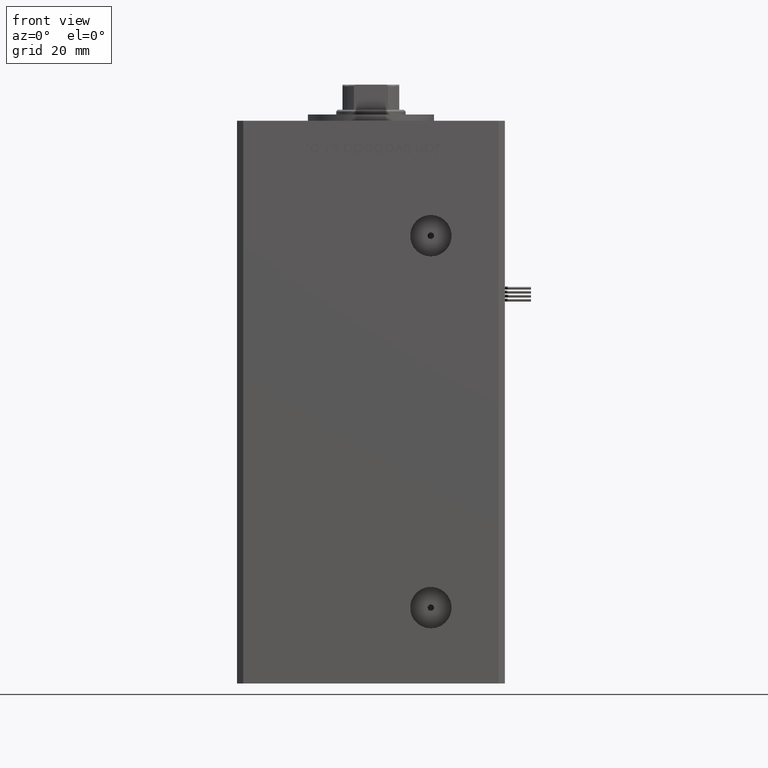
[diagram: clean part render]
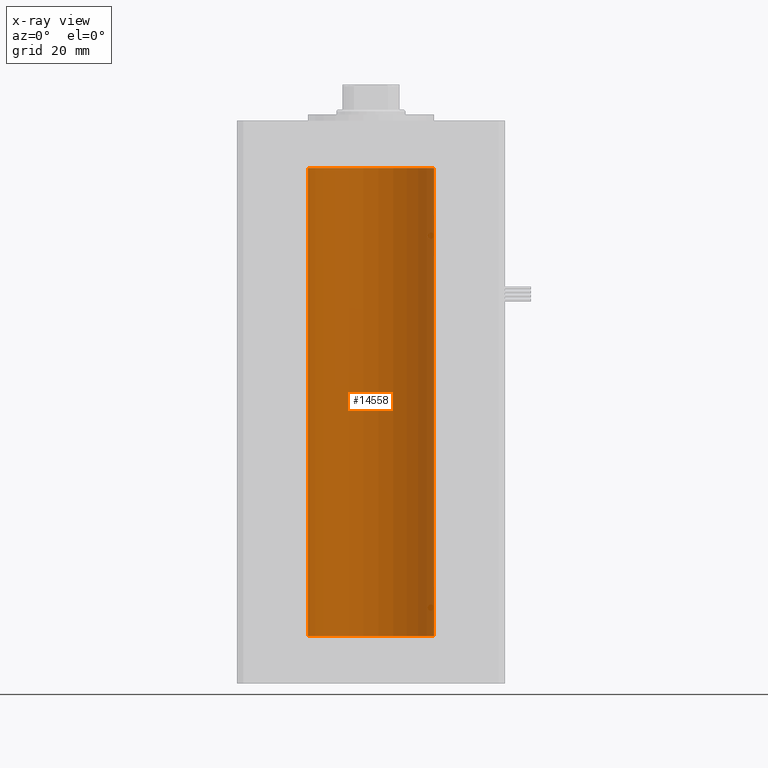
[diagram: x-ray — body ghosted, one internal face saturated and labeled with its STEP entity id]
A machine part, front view, then the same camera in x-ray: the body is ghosted and one INTERNAL B-rep face — a face not visible from any outside direction — is saturated and labeled: STEP entity #14558.
In plain terms, the highlighted cylindrical surface (partial cylindrical patch) has radius 20 mm, axis along (-0, -0, -1).
Its self-contained STEP definition (entity closure, byte-faithful):
#66 = DIRECTION ( 'NONE',  ( -0.000000000000000000, -0.000000000000000000, -1.000000000000000000 ) ) ;
#2416 = CARTESIAN_POINT ( 'NONE',  ( 0.000000000000000000, 0.000000000000000000, 148.5000000000000000 ) ) ;
#2616 = EDGE_CURVE ( 'NONE', #5485, #48357, #25473, .T. ) ;
#5485 = VERTEX_POINT ( 'NONE', #27902 ) ;
#6746 = VERTEX_POINT ( 'NONE', #25646 ) ;
#6875 = CYLINDRICAL_SURFACE ( 'NONE', #9455, 20.00000000000000000 ) ;
#8182 = CARTESIAN_POINT ( 'NONE',  ( -20.00000000000000000, 0.000000000000000000, 148.5000000000000000 ) ) ;
#8729 = AXIS2_PLACEMENT_3D ( 'NONE', #2416, #37036, #27540 ) ;
#9455 = AXIS2_PLACEMENT_3D ( 'NONE', #23895, #14714, #27805 ) ;
#10801 = FACE_OUTER_BOUND ( 'NONE', #40722, .T. ) ;
#13743 = DIRECTION ( 'NONE',  ( 1.000000000000000000, 0.000000000000000000, 0.000000000000000000 ) ) ;
#14066 = CIRCLE ( 'NONE', #8729, 20.00000000000000000 ) ;
#14558 = ADVANCED_FACE ( 'NONE', ( #10801 ), #6875, .F. ) ;
#14714 = DIRECTION ( 'NONE',  ( -0.000000000000000000, -0.000000000000000000, -1.000000000000000000 ) ) ;
#17154 = VECTOR ( 'NONE', #41071, 1000.000000000000000 ) ;
#18593 = VERTEX_POINT ( 'NONE', #49458 ) ;
#19474 = EDGE_CURVE ( 'NONE', #18593, #5485, #14066, .T. ) ;
#20233 = ORIENTED_EDGE ( 'NONE', *, *, #35294, .F. ) ;
#23895 = CARTESIAN_POINT ( 'NONE',  ( 0.000000000000000000, 0.000000000000000000, 148.5000000000000000 ) ) ;
#25473 = LINE ( 'NONE', #8182, #37768 ) ;
#25646 = CARTESIAN_POINT ( 'NONE',  ( 20.00000000000000000, 2.449293598294706513E-15, 0.000000000000000000 ) ) ;
#25731 = CIRCLE ( 'NONE', #43536, 20.00000000000000000 ) ;
#26285 = DIRECTION ( 'NONE',  ( -0.000000000000000000, 0.000000000000000000, 1.000000000000000000 ) ) ;
#27540 = DIRECTION ( 'NONE',  ( 1.000000000000000000, 0.000000000000000000, 0.000000000000000000 ) ) ;
#27805 = DIRECTION ( 'NONE',  ( -1.000000000000000000, 0.000000000000000000, 0.000000000000000000 ) ) ;
#27902 = CARTESIAN_POINT ( 'NONE',  ( -20.00000000000000000, 0.000000000000000000, 148.5000000000000000 ) ) ;
#31496 = ORIENTED_EDGE ( 'NONE', *, *, #38091, .F. ) ;
#32174 = ORIENTED_EDGE ( 'NONE', *, *, #19474, .T. ) ;
#35294 = EDGE_CURVE ( 'NONE', #18593, #6746, #41900, .T. ) ;
#37036 = DIRECTION ( 'NONE',  ( -0.000000000000000000, 0.000000000000000000, 1.000000000000000000 ) ) ;
#37768 = VECTOR ( 'NONE', #66, 1000.000000000000000 ) ;
#38091 = EDGE_CURVE ( 'NONE', #6746, #48357, #25731, .T. ) ;
#40722 = EDGE_LOOP ( 'NONE', ( #20233, #32174, #49330, #31496 ) ) ;
#41071 = DIRECTION ( 'NONE',  ( -0.000000000000000000, -0.000000000000000000, -1.000000000000000000 ) ) ;
#41900 = LINE ( 'NONE', #45807, #17154 ) ;
#43536 = AXIS2_PLACEMENT_3D ( 'NONE', #48296, #26285, #13743 ) ;
#45807 = CARTESIAN_POINT ( 'NONE',  ( 20.00000000000000000, 2.449293598294706513E-15, 148.5000000000000000 ) ) ;
#48230 = CARTESIAN_POINT ( 'NONE',  ( -20.00000000000000000, 0.000000000000000000, 0.000000000000000000 ) ) ;
#48296 = CARTESIAN_POINT ( 'NONE',  ( 0.000000000000000000, 0.000000000000000000, 0.000000000000000000 ) ) ;
#48357 = VERTEX_POINT ( 'NONE', #48230 ) ;
#49330 = ORIENTED_EDGE ( 'NONE', *, *, #2616, .T. ) ;
#49458 = CARTESIAN_POINT ( 'NONE',  ( 20.00000000000000000, 2.449293598294706513E-15, 148.5000000000000000 ) ) ;